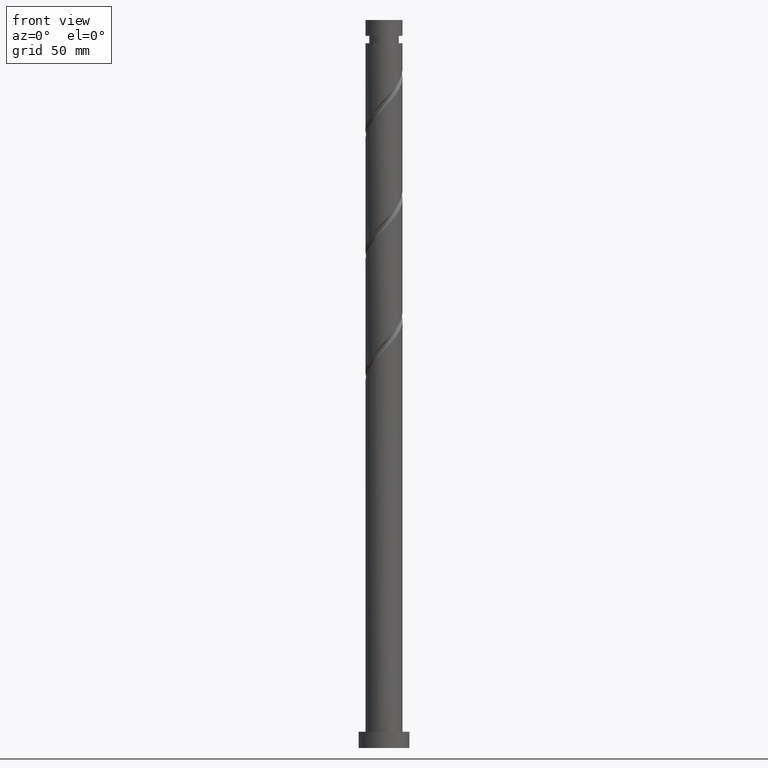
[diagram: clean part render]
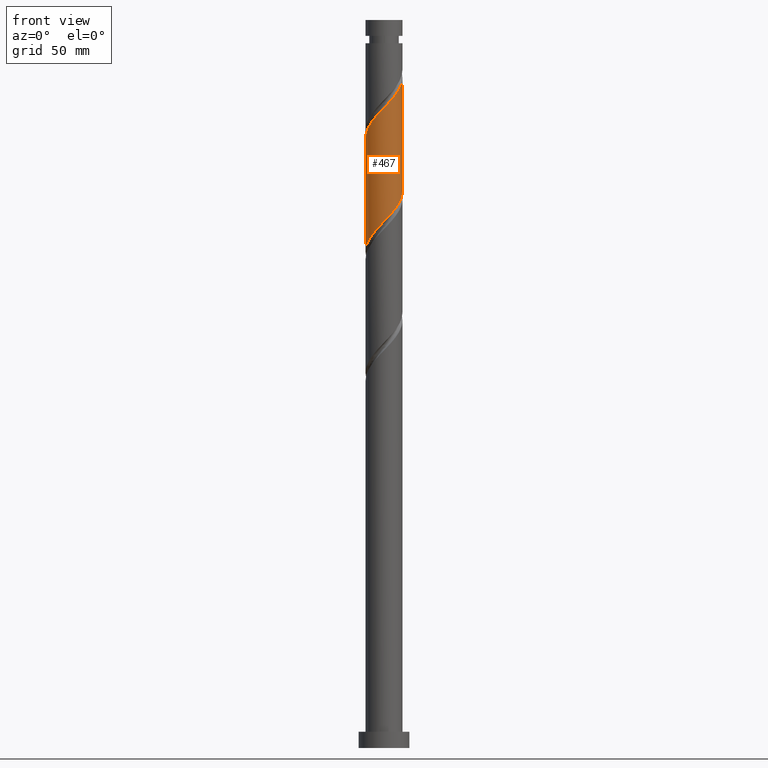
[diagram: same view with one face highlighted and labeled with its STEP entity id]
A machine part, front view. The second image highlights one B-rep face of the part: STEP entity #467.
In plain terms, the highlighted cylindrical surface (edge-blend (fillet) strip) has radius 8 mm, axis along (-0, -0, -1).
Its self-contained STEP definition (entity closure, byte-faithful):
#33 = CARTESIAN_POINT ( 'NONE',  ( -6.917745010439728226, -4.117923775305156298, 268.3987030128767515 ) ) ;
#75 = CYLINDRICAL_SURFACE ( 'NONE', #153, 8.000000000000000000 ) ;
#81 = CARTESIAN_POINT ( 'NONE',  ( -1.967324187022330584, -7.754330115693885972, 274.9612030128768083 ) ) ;
#106 = DIRECTION ( 'NONE',  ( -0.000000000000000000, -0.000000000000000000, -1.000000000000000000 ) ) ;
#136 = VERTEX_POINT ( 'NONE', #1660 ) ;
#143 = CARTESIAN_POINT ( 'NONE',  ( 4.445972725462986830, -6.711618193336554405, 232.7737030128767231 ) ) ;
#153 = AXIS2_PLACEMENT_3D ( 'NONE', #1575, #399, #690 ) ;
#170 = CARTESIAN_POINT ( 'NONE',  ( -8.000000000000015987, 2.328420669358093977E-15, 263.9116859349707624 ) ) ;
#183 = CARTESIAN_POINT ( 'NONE',  ( -5.827978455592415230, -5.554021909376833044, 270.2737030128768652 ) ) ;
#203 = CARTESIAN_POINT ( 'NONE',  ( 7.997683685553133692, -0.1924984826887058409, 289.9612030128768083 ) ) ;
#213 = CARTESIAN_POINT ( 'NONE',  ( 0.7086240505537216849, -8.019373055523983496, 277.7737030128768652 ) ) ;
#271 = DIRECTION ( 'NONE',  ( -0.000000000000000000, -0.000000000000000000, -1.000000000000000000 ) ) ;
#272 = VECTOR ( 'NONE', #106, 1000.000000000000000 ) ;
#276 =( BOUNDED_CURVE ( )  B_SPLINE_CURVE ( 2, ( #170, #622, #1666, #327, #779, #33, #633, #183, #642, #1235, #1824, #357, #81, #1875, #1573, #213, #1562, #1858, #1867, #1706, #1249, #367, #1722, #814, #822, #385, #1697, #988, #203, #674, #1141 ),
 .UNSPECIFIED., .F., .T. ) 
 B_SPLINE_CURVE_WITH_KNOTS ( ( 3, 2, 2, 2, 2, 2, 2, 2, 2, 2, 2, 2, 2, 2, 2, 3 ),
 ( 0.5545303401299223056, 0.5625000000000000000, 0.5714285714285713969, 0.5803571428571427937, 0.5892857142857143016, 0.5982142857142856984, 0.6071428571428572063, 0.6160714285714286031, 0.6250000000000000000, 0.6339285714285713969, 0.6428571428571427937, 0.6517857142857143016, 0.6607142857142856984, 0.6696428571428572063, 0.6785714285714286031, 0.6795303401299220836 ),
 .UNSPECIFIED. ) 
 CURVE ( )  GEOMETRIC_REPRESENTATION_ITEM ( )  RATIONAL_B_SPLINE_CURVE ( ( 0.9079949616361980835, 0.9039886423360615764, 0.9090909090909282675, 0.9033747362666031400, 0.9090909090909282675, 0.9033747362666031400, 0.9090909090909282675, 0.9033747362666031400, 0.9090909090909282675, 0.9033747362666031400, 0.9090909090909282675, 0.9033747362666031400, 0.9090909090909282675, 0.9033747362666031400, 0.9090909090909282675, 0.9033747362666031400, 0.9090909090909282675, 0.9033747362666031400, 0.9090909090909282675, 0.9033747362666031400, 0.9090909090909282675, 0.9033747362666031400, 0.9090909090909282675, 0.9033747362666031400, 0.9090909090909282675, 0.9033747362666031400, 0.9090909090909282675, 0.9033747362666031400, 0.9090909090909282675, 0.9084770030214700531, 0.9079949616361984166 ) ) 
 REPRESENTATION_ITEM ( '' )  );
#277 = CARTESIAN_POINT ( 'NONE',  ( 7.289185977457873555, -3.296629761746309395, 237.4612030128767515 ) ) ;
#322 = CARTESIAN_POINT ( 'NONE',  ( -3.296629761746308063, -7.289185977457873555, 224.3362030128768083 ) ) ;
#327 = CARTESIAN_POINT ( 'NONE',  ( -7.660626944476047306, -2.475335748187466489, 266.5237030128768083 ) ) ;
#337 = CARTESIAN_POINT ( 'NONE',  ( -8.000000000000000000, -0.09626317733112278729, 214.8610827790079156 ) ) ;
#357 = CARTESIAN_POINT ( 'NONE',  ( -2.841027358113530354, -7.532665915805484502, 274.0237030128768083 ) ) ;
#367 = CARTESIAN_POINT ( 'NONE',  ( 5.554021909376833044, -5.827978455592415230, 283.3987030128768083 ) ) ;
#385 = CARTESIAN_POINT ( 'NONE',  ( 7.532665915805484502, -2.841027358113530354, 287.1487030128767515 ) ) ;
#399 = DIRECTION ( 'NONE',  ( -0.000000000000000000, -0.000000000000000000, -1.000000000000000000 ) ) ;
#422 = CARTESIAN_POINT ( 'NONE',  ( 7.999999999999998224, -0.8040302522073720093, 240.1724490118191113 ) ) ;
#434 = CARTESIAN_POINT ( 'NONE',  ( 5.827978455592403684, -5.554021909376825050, 234.6487030128767231 ) ) ;
#467 = ADVANCED_FACE ( 'NONE', ( #536 ), #75, .T. ) ;
#484 = CARTESIAN_POINT ( 'NONE',  ( -7.975994315582275007, -1.093621015931127483, 215.8987030128767515 ) ) ;
#490 = CARTESIAN_POINT ( 'NONE',  ( 8.000000000000015987, -3.582185645166298911E-15, 290.1616859349707624 ) ) ;
#536 = FACE_OUTER_BOUND ( 'NONE', #875, .T. ) ;
#578 = LINE ( 'NONE', #1743, #272 ) ;
#581 = CARTESIAN_POINT ( 'NONE',  ( 8.000000000000000000, 9.797174393178825657E-16, 315.0000000000000000 ) ) ;
#596 = CARTESIAN_POINT ( 'NONE',  ( 2.841027358113521473, -7.532665915805472956, 230.8987030128767231 ) ) ;
#610 = ORIENTED_EDGE ( 'NONE', *, *, #1851, .F. ) ;
#621 =( BOUNDED_CURVE ( )  B_SPLINE_CURVE ( 2, ( #1901, #422, #1183, #736, #277, #1771, #1466, #434, #1629, #143, #746, #596, #1652, #1368, #1662, #797, #1811, #644, #322, #1826, #1676, #766, #1516, #1360, #944, #1685, #1500, #484, #1836, #337, #1531 ),
 .UNSPECIFIED., .F., .T. ) 
 B_SPLINE_CURVE_WITH_KNOTS ( ( 3, 2, 2, 2, 2, 2, 2, 2, 2, 2, 2, 2, 2, 2, 2, 3 ),
 ( 0.5545303401299220836, 0.5625000000000000000, 0.5714285714285713969, 0.5803571428571429047, 0.5892857142857143016, 0.5982142857142856984, 0.6071428571428570953, 0.6160714285714286031, 0.6250000000000000000, 0.6339285714285713969, 0.6428571428571429047, 0.6517857142857143016, 0.6607142857142856984, 0.6696428571428570953, 0.6785714285714286031, 0.6795303401299220836 ),
 .UNSPECIFIED. ) 
 CURVE ( )  GEOMETRIC_REPRESENTATION_ITEM ( )  RATIONAL_B_SPLINE_CURVE ( ( 0.9079949616361917553, 0.9039886423360551371, 0.9090909090909216062, 0.9033747362665968117, 0.9090909090909216062, 0.9033747362665968117, 0.9090909090909216062, 0.9033747362665968117, 0.9090909090909216062, 0.9033747362665968117, 0.9090909090909216062, 0.9033747362665968117, 0.9090909090909216062, 0.9033747362665968117, 0.9090909090909216062, 0.9033747362665968117, 0.9090909090909216062, 0.9033747362665968117, 0.9090909090909216062, 0.9033747362665968117, 0.9090909090909216062, 0.9033747362665968117, 0.9090909090909216062, 0.9033747362665968117, 0.9090909090909216062, 0.9033747362665968117, 0.9090909090909216062, 0.9033747362665968117, 0.9090909090909216062, 0.9084770030214633918, 0.9079949616361917553 ) ) 
 REPRESENTATION_ITEM ( '' )  );
#622 = CARTESIAN_POINT ( 'NONE',  ( -8.000000000000010658, -0.8040302522073925484, 264.7499570139344200 ) ) ;
#633 = CARTESIAN_POINT ( 'NONE',  ( -6.372861733016071284, -4.835972842340994227, 269.3362030128767515 ) ) ;
#642 = CARTESIAN_POINT ( 'NONE',  ( -5.136975590527707247, -6.132820051356696389, 271.2112030128768083 ) ) ;
#644 = CARTESIAN_POINT ( 'NONE',  ( -2.475335748187464269, -7.660626944476033096, 225.2737030128767799 ) ) ;
#674 = CARTESIAN_POINT ( 'NONE',  ( 8.000000000000012434, -0.09626317733112624286, 290.0613232467455873 ) ) ;
#690 = DIRECTION ( 'NONE',  ( -1.000000000000000000, 0.000000000000000000, 0.000000000000000000 ) ) ;
#708 = EDGE_CURVE ( 'NONE', #834, #1062, #1030, .T. ) ;
#736 = CARTESIAN_POINT ( 'NONE',  ( 7.660626944476033096, -2.475335748187465157, 238.3987030128767515 ) ) ;
#746 = CARTESIAN_POINT ( 'NONE',  ( 3.643500041788254151, -7.122142054571012793, 231.8362030128768083 ) ) ;
#766 = CARTESIAN_POINT ( 'NONE',  ( -5.554021909376825050, -5.827978455592403684, 221.5237030128767799 ) ) ;
#779 = CARTESIAN_POINT ( 'NONE',  ( -7.289185977457886878, -3.296629761746310283, 267.4612030128768083 ) ) ;
#797 = CARTESIAN_POINT ( 'NONE',  ( -0.7086240505537237944, -8.019373055523969285, 227.1487030128767515 ) ) ;
#814 = CARTESIAN_POINT ( 'NONE',  ( 6.711618193336562399, -4.445972725462997488, 285.2737030128768652 ) ) ;
#822 = CARTESIAN_POINT ( 'NONE',  ( 7.122142054571020786, -3.643500041788264809, 286.2112030128767515 ) ) ;
#834 = VERTEX_POINT ( 'NONE', #490 ) ;
#875 = EDGE_LOOP ( 'NONE', ( #1849, #1558, #1742, #610 ) ) ;
#916 = EDGE_CURVE ( 'NONE', #136, #834, #276, .T. ) ;
#944 = CARTESIAN_POINT ( 'NONE',  ( -7.122142054571012793, -3.643500041788254595, 218.7112030128767799 ) ) ;
#988 = CARTESIAN_POINT ( 'NONE',  ( 7.975994315582287442, -1.093621015931133034, 289.0237030128768652 ) ) ;
#1030 = LINE ( 'NONE', #581, #1681 ) ;
#1062 = VERTEX_POINT ( 'NONE', #1537 ) ;
#1141 = CARTESIAN_POINT ( 'NONE',  ( 8.000000000000015987, -3.582185645166298911E-15, 290.1616859349707624 ) ) ;
#1183 = CARTESIAN_POINT ( 'NONE',  ( 7.839999999999999858, -1.591979899370594920, 239.3362030128767515 ) ) ;
#1224 = CARTESIAN_POINT ( 'NONE',  ( -7.999999999999998224, 9.403237318561601103E-16, 214.7607200907827973 ) ) ;
#1235 = CARTESIAN_POINT ( 'NONE',  ( -4.445972725462997488, -6.711618193336562399, 272.1487030128768083 ) ) ;
#1249 = CARTESIAN_POINT ( 'NONE',  ( 4.835972842340994227, -6.372861733016071284, 282.4612030128767515 ) ) ;
#1261 = EDGE_CURVE ( 'NONE', #136, #1459, #578, .T. ) ;
#1360 = CARTESIAN_POINT ( 'NONE',  ( -6.711618193336553517, -4.445972725462986830, 219.6487030128767515 ) ) ;
#1368 = CARTESIAN_POINT ( 'NONE',  ( 1.093621015931126594, -7.975994315582275007, 229.0237030128767515 ) ) ;
#1459 = VERTEX_POINT ( 'NONE', #1224 ) ;
#1466 = CARTESIAN_POINT ( 'NONE',  ( 6.372861733016058849, -4.835972842340986233, 235.5862030128767799 ) ) ;
#1500 = CARTESIAN_POINT ( 'NONE',  ( -7.754330115693874426, -1.967324187022324145, 216.8362030128767515 ) ) ;
#1516 = CARTESIAN_POINT ( 'NONE',  ( -6.132820051356686619, -5.136975590527694813, 220.5862030128768083 ) ) ;
#1531 = CARTESIAN_POINT ( 'NONE',  ( -7.999999999999998224, 9.403237318561601103E-16, 214.7607200907827973 ) ) ;
#1537 = CARTESIAN_POINT ( 'NONE',  ( 7.999999999999998224, -1.865721690190793863E-15, 241.0107200907828258 ) ) ;
#1558 = ORIENTED_EDGE ( 'NONE', *, *, #916, .F. ) ;
#1562 = CARTESIAN_POINT ( 'NONE',  ( 1.591979899370593365, -7.840000000000014069, 278.7112030128768083 ) ) ;
#1573 = CARTESIAN_POINT ( 'NONE',  ( -0.1924984826887049527, -7.997683685553133692, 276.8362030128767515 ) ) ;
#1575 = CARTESIAN_POINT ( 'NONE',  ( 0.000000000000000000, 0.000000000000000000, 315.0000000000000000 ) ) ;
#1629 = CARTESIAN_POINT ( 'NONE',  ( 5.136975590527694813, -6.132820051356687507, 233.7112030128767799 ) ) ;
#1652 = CARTESIAN_POINT ( 'NONE',  ( 1.967324187022323700, -7.754330115693872649, 229.9612030128767515 ) ) ;
#1660 = CARTESIAN_POINT ( 'NONE',  ( -8.000000000000015987, 2.328420669358093977E-15, 263.9116859349707624 ) ) ;
#1662 = CARTESIAN_POINT ( 'NONE',  ( 0.1924984826887017053, -7.997683685553119481, 228.0862030128767515 ) ) ;
#1666 = CARTESIAN_POINT ( 'NONE',  ( -7.840000000000014069, -1.591979899370594254, 265.5862030128767515 ) ) ;
#1676 = CARTESIAN_POINT ( 'NONE',  ( -4.835972842340985345, -6.372861733016058849, 222.4612030128767515 ) ) ;
#1681 = VECTOR ( 'NONE', #271, 1000.000000000000000 ) ;
#1685 = CARTESIAN_POINT ( 'NONE',  ( -7.532665915805472956, -2.841027358113521473, 217.7737030128767799 ) ) ;
#1697 = CARTESIAN_POINT ( 'NONE',  ( 7.754330115693885972, -1.967324187022330584, 288.0862030128767515 ) ) ;
#1706 = CARTESIAN_POINT ( 'NONE',  ( 4.117923775305156298, -6.917745010439728226, 281.5237030128768083 ) ) ;
#1722 = CARTESIAN_POINT ( 'NONE',  ( 6.132820051356694613, -5.136975590527707247, 284.3362030128767515 ) ) ;
#1742 = ORIENTED_EDGE ( 'NONE', *, *, #1261, .T. ) ;
#1743 = CARTESIAN_POINT ( 'NONE',  ( -8.000000000000000000, 0.000000000000000000, 315.0000000000000000 ) ) ;
#1771 = CARTESIAN_POINT ( 'NONE',  ( 6.917745010439713127, -4.117923775305150080, 236.5237030128767231 ) ) ;
#1811 = CARTESIAN_POINT ( 'NONE',  ( -1.591979899370594476, -7.839999999999999858, 226.2112030128767515 ) ) ;
#1824 = CARTESIAN_POINT ( 'NONE',  ( -3.643500041788263033, -7.122142054571020786, 273.0862030128767515 ) ) ;
#1826 = CARTESIAN_POINT ( 'NONE',  ( -4.117923775305150080, -6.917745010439714903, 223.3987030128767799 ) ) ;
#1836 = CARTESIAN_POINT ( 'NONE',  ( -7.997683685553119481, -0.1924984826887021772, 214.9612030128767515 ) ) ;
#1849 = ORIENTED_EDGE ( 'NONE', *, *, #708, .F. ) ;
#1851 = EDGE_CURVE ( 'NONE', #1062, #1459, #621, .T. ) ;
#1858 = CARTESIAN_POINT ( 'NONE',  ( 2.475335748187466489, -7.660626944476047306, 279.6487030128767515 ) ) ;
#1867 = CARTESIAN_POINT ( 'NONE',  ( 3.296629761746309839, -7.289185977457886878, 280.5862030128767515 ) ) ;
#1875 = CARTESIAN_POINT ( 'NONE',  ( -1.093621015931132368, -7.975994315582289218, 275.8987030128768652 ) ) ;
#1901 = CARTESIAN_POINT ( 'NONE',  ( 7.999999999999998224, -1.865721690190793863E-15, 241.0107200907828258 ) ) ;